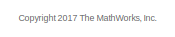
[diagram: root canvas - part 1/3, top center region]
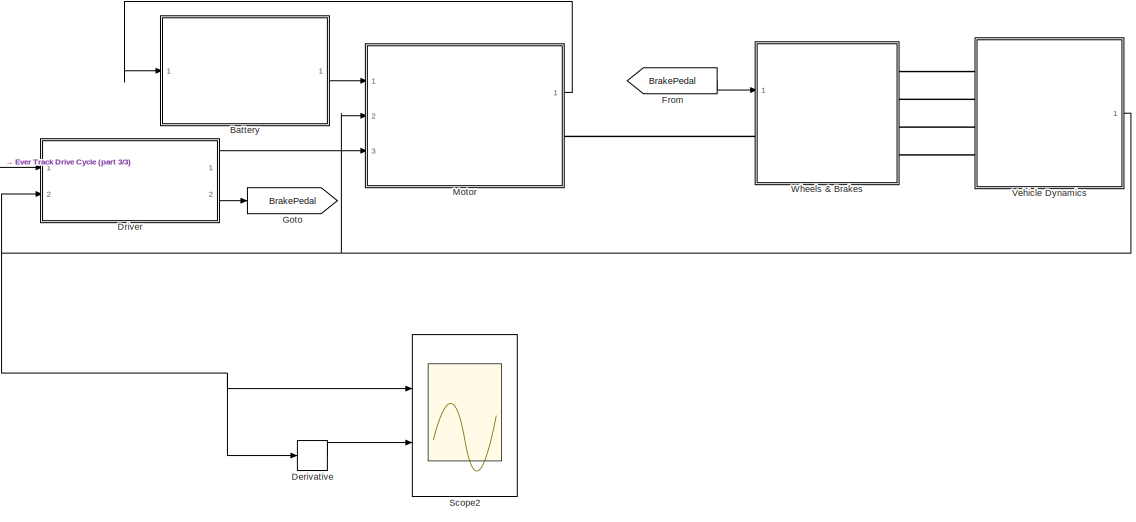
[diagram: root canvas - part 2/3, bottom center region]
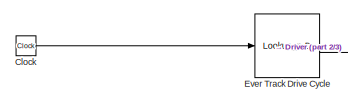
[diagram: root canvas - part 3/3, bottom left region]
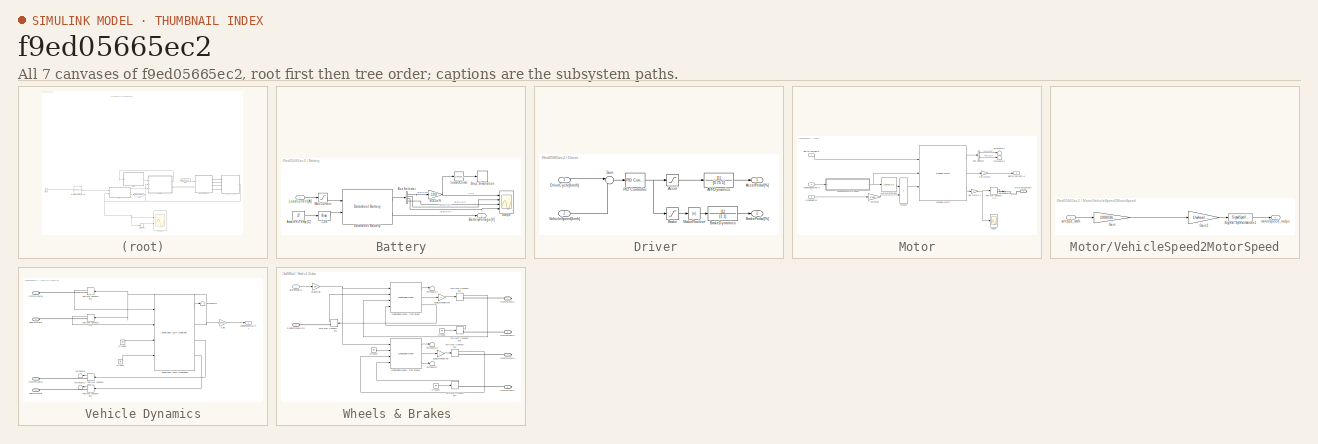
[diagram: thumbnail index - all 7 canvases of the model, root first then tree order]
MODEL slx_f9ed05665ec2
KIND model
CONFIG AbsTol = auto
CONFIG EnableMultiTasking = off
CONFIG FixedStep = .001
CONFIG MaxStep = auto
CONFIG MinStep = auto
CONFIG RelTol = 1e-5
CONFIG SampleTimeConstraint = Unconstrained
CONFIG Solver = ode23tb
CONFIG SolverName = ode23tb
CONFIG StartTime = 0.0
CONFIG StopTime = 3158
WORKSPACE source: MAT-file member
WORKSPACE Cd = 0.3
WORKSPACE DrCycles: struct (value not decoded)
BLOCK [SubSystem] Battery
  Ports = [1, 1]
  RequestExecContextInheritance = off
BLOCK [Constant] Battery/AmbientTemp[C]
  Value = 27
BLOCK [Outport] Battery/BatteryVoltage[V]
  IconDisplay = Port number
BLOCK [BusSelector] Battery/Bus Selector
  OutputAsBus = off
  OutputSignals = BattSoc,BattCurr,BattPwr,BattVolt
  Ports = [1, 4]
BLOCK [Bias] Battery/C2K
  Bias = 273
  SaturateOnIntegerOverflow = off
BLOCK [Reference] Battery/Datasheet Battery  REF=autolibdatasheetbattery/Datasheet Battery
  Ports = [2, 2]
  SourceBlock = autolibdatasheetbattery/Datasheet Battery
  SourceProductBaseCode = PW
  SourceProductName = Powertrain Blockset
  SourceType = Datasheet Battery
BLOCK [Inport] Battery/LoadCurrent[A]
  IconDisplay = Port number
BLOCK [Saturate] Battery/Max Current
  InputPortMap = u0
  LowerLimit = 0
  Ports = [1, 1]
  UpperLimit = 180
BLOCK [Gain] Battery/SOCto%
  Gain = 100
  OutDataTypeStr = Inherit: Inherit via internal rule
  ParamDataTypeStr = Inherit: Inherit via internal rule
  SaturateOnIntegerOverflow = off
BLOCK [Scope] Battery/Scope
  Floating = off
  NumInputPorts = 4
  Ports = [4]
  ScopeSpecificationString = Simulink.scopes.TimeScopeBlockCfg('CurrentConfiguration', extmgr.ConfigurationSet(extmgr.Configuration('Core','General UI',true,'FigureColor',[1 1 1]),extmgr.Configuration('Core','Source UI',true),extmgr.Configuration('Sources','WiredSimulink',true,'DataLoggingVariableName','ScopeData1'),extmgr.Configuration('Visuals','Time Domain',true,'SerializedDisplays',{struct('MinYLimReal','33.32208','MaxYLi...<+3558ch>
BLOCK [Stop] Battery/Stop Simulation
BLOCK [Reference] Battery/lowSOClimit  REF=simulink/Logic and Bit
Operations/Compare
To Constant
  Ports = [1, 1]
  SourceBlock = simulink/Logic and Bit\nOperations/Compare\nTo Constant
  SourceProductBaseCode = SL
  SourceProductName = Simulink
  SourceType = Compare To Constant
BLOCK [Clock] Clock
BLOCK [Derivative] Derivative
BLOCK [SubSystem] Driver 
  AncestorBlock = Wheels_Driver_VehDyn_Lib/Driver
  Ports = [2, 2]
  RequestExecContextInheritance = off
BLOCK [Inport] Driver / DriveCycle[km//h]
  IconDisplay = Port number
BLOCK [TransferFcn] Driver /APPDynamics
  Denominator = [0.75 1]
BLOCK [Saturate] Driver /Accel
  InputPortMap = u0
  LowerLimit = 0
  Ports = [1, 1]
  UpperLimit = 100
BLOCK [Outport] Driver /AccelPedal[%]
  IconDisplay = Port number
BLOCK [Saturate] Driver /Brake
  InputPortMap = u0
  LowerLimit = -100
  Ports = [1, 1]
  UpperLimit = 0
BLOCK [TransferFcn] Driver /BrakeDynamics
  Denominator = [1 1]
BLOCK [Outport] Driver /BrakePedal[%]
  IconDisplay = Port number
  Port = 2
BLOCK [Abs] Driver /MakePositive
  SaturateOnIntegerOverflow = off
BLOCK [Reference] Driver /PID Controller  REF=simulink/Continuous/PID Controller
  Ports = [1, 1]
  SourceBlock = simulink/Continuous/PID Controller
  SourceProductBaseCode = SL
  SourceProductName = Simulink
  SourceType = PID 1dof
BLOCK [Sum] Driver /Sum
  IconShape = round
  InputSameDT = off
  Inputs = |+-
  OutDataTypeStr = Inherit: Inherit via internal rule
  Ports = [2, 1]
  SaturateOnIntegerOverflow = off
BLOCK [Inport] Driver /VehicleSpeed[kmh]
  IconDisplay = Port number
  Port = 2
BLOCK [Lookup_n-D] Ever Track Drive Cycle
  BreakpointsForDimension1 = [-5:5]
  DataSpecification = Lookup table object
  InternalRulePriority = Speed
  LookupTableObject = Drive_Cycle
  NumberOfTableDimensions = 1
  Ports = [1, 1]
  RndMeth = Simplest
  Table = tanh([-5:5])
BLOCK [From] From
  GotoTag = BrakePedal
BLOCK [Goto] Goto
  GotoTag = BrakePedal
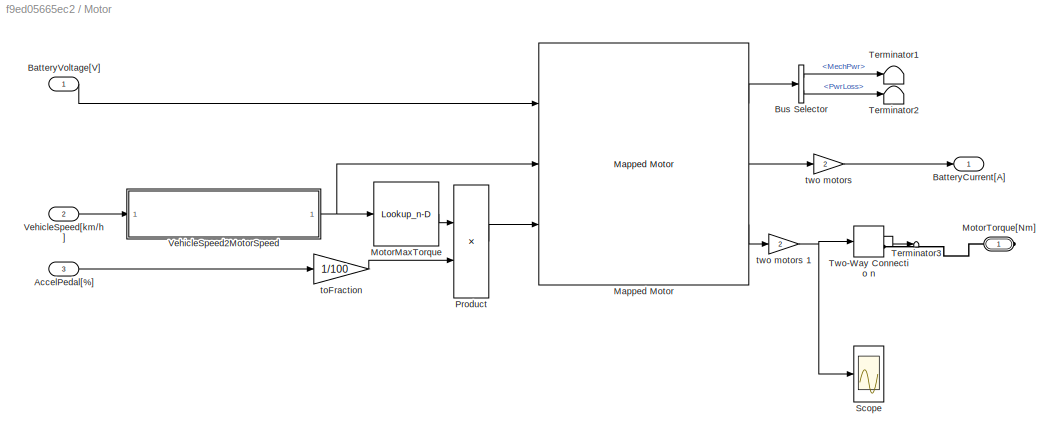
BLOCK [SubSystem] Motor
  Ports = [3, 1, 0, 0, 0, 0, 1]
  RequestExecContextInheritance = off
BLOCK [Inport] Motor/AccelPedal[%]
  IconDisplay = Port number
  Port = 3
BLOCK [Outport] Motor/BatteryCurrent[A]
  IconDisplay = Port number
BLOCK [Inport] Motor/BatteryVoltage[V]
  IconDisplay = Port number
BLOCK [BusSelector] Motor/Bus Selector
  OutputAsBus = off
  OutputSignals = MechPwr,PwrLoss
  Ports = [1, 2]
BLOCK [Reference] Motor/Mapped Motor  REF=autolibmappedmotor/Mapped Motor
  Ports = [3, 3]
  SourceBlock = autolibmappedmotor/Mapped Motor
  SourceProductBaseCode = PW
  SourceProductName = Powertrain Blockset
  SourceType = MappedMotor
BLOCK [Lookup_n-D] Motor/MotorMaxTorque
  BreakpointsForDimension1 = [4.396\n6.594\n8.478\n10.25733333\n11.932\n13.816\n15.59533333\n17.47933333\n19.25866667\n21.77066667\n23.96866667\n26.062\n28.36466667\n30.772\n33.284\n35.90066667\n38.72666667\n41.97133333\n45.63466667\n49.612\n53.17066667\n57.462\n63.21866667\n84.25666667\n85.094\n85.722\n86.24533333\n86.87333333\n87.39666667\n88.12933333\n88.65266667\n89.07133333\n89.49\n89.804\n90.01333333\n90.118\n\n]
  ExtrapMethod = Clip
  InternalRulePriority = Speed
  NumberOfTableDimensions = 1
  Ports = [1, 1]
  RndMeth = Simplest
  Table = [190.6\n184.5\n178.2\n173.4\n168.1\n162.5\n155.4\n150.1\n144.2\n137.1\n131.1\n125.4\n120.1\n114.6\n109.4\n104.0\n98.3\n93.1\n87.8\n82.2\n77.2\n71.6\n66.2\n53.4\n47.2\n41.2\n35.4\n25.0\n20.0\n15.3\n11.3\n7.8\n5.1\n2.9\n2.2\n0.9\n\n]
BLOCK [PMIOPort] Motor/MotorTorque[Nm]
  Side = Right
BLOCK [Product] Motor/Product
  InputSameDT = off
  OutDataTypeStr = Inherit: Inherit via internal rule
  Ports = [2, 1]
  RndMeth = Floor
  SaturateOnIntegerOverflow = off
BLOCK [Scope] Motor/Scope
  Floating = off
  NumInputPorts = 1
  Ports = [1]
  ScopeSpecificationString = Simulink.scopes.TimeScopeBlockCfg('CurrentConfiguration', extmgr.ConfigurationSet(extmgr.Configuration('Core','General UI',true,'FigureColor',[1 1 1]),extmgr.Configuration('Core','Source UI',true),extmgr.Configuration('Sources','WiredSimulink',true,'DataLoggingVariableName','ScopeData4'),extmgr.Configuration('Visuals','Time Domain',true,'SerializedDisplays',{struct('MinYLimReal','-37.07826','MaxYL...<+1436ch>
BLOCK [Terminator] Motor/Terminator1
BLOCK [Terminator] Motor/Terminator2
BLOCK [Terminator] Motor/Terminator3
BLOCK [TwoWayConnection] Motor/Two-Way Connectio n
  Ports = [1, 1, 0, 0, 0, 0, 1]
BLOCK [SubSystem] Motor/VehicleSpeed2MotorSpeed
  Ports = [1, 1]
  RequestExecContextInheritance = off
BLOCK [Gain] Motor/VehicleSpeed2MotorSpeed/Gain
  Gain = 1000/3600
  OutDataTypeStr = Inherit: Inherit via internal rule
  ParamDataTypeStr = Inherit: Inherit via internal rule
  SaturateOnIntegerOverflow = off
BLOCK [Gain] Motor/VehicleSpeed2MotorSpeed/Gain2
  Gain = 1/wheelRadius
  OutDataTypeStr = Inherit: Inherit via internal rule
  ParamDataTypeStr = Inherit: Inherit via internal rule
  SaturateOnIntegerOverflow = off
BLOCK [SignalSpecification] Motor/VehicleSpeed2MotorSpeed/Signal Specification1
  Unit = rad/s
BLOCK [Outport] Motor/VehicleSpeed2MotorSpeed/motorSpeed_radps
  IconDisplay = Port number
BLOCK [Inport] Motor/VehicleSpeed2MotorSpeed/vehSpd_km//h
  IconDisplay = Port number
BLOCK [Inport] Motor/VehicleSpeed[km//h]
  IconDisplay = Port number
  Port = 2
BLOCK [Gain] Motor/toFraction
  Gain = 1/100
  OutDataTypeStr = Inherit: Inherit via internal rule
  ParamDataTypeStr = Inherit: Inherit via internal rule
  SaturateOnIntegerOverflow = off
BLOCK [Gain] Motor/two motors 
  Gain = 2
  OutDataTypeStr = Inherit: Inherit via internal rule
  ParamDataTypeStr = Inherit: Inherit via internal rule
  SaturateOnIntegerOverflow = off
BLOCK [Gain] Motor/two motors 1
  Gain = 2
  OutDataTypeStr = Inherit: Inherit via internal rule
  ParamDataTypeStr = Inherit: Inherit via internal rule
  SaturateOnIntegerOverflow = off
BLOCK [Scope] Scope2
  Floating = off
  NumInputPorts = 2
  Ports = [2]
  ScopeSpecificationString = Simulink.scopes.TimeScopeBlockCfg('CurrentConfiguration', extmgr.ConfigurationSet(extmgr.Configuration('Core','General UI',true,'FigureColor',[1 1 1]),extmgr.Configuration('Core','Source UI',true),extmgr.Configuration('Sources','WiredSimulink',true,'DataLoggingVariableName','ScopeData2'),extmgr.Configuration('Visuals','Time Domain',true,'TimeAxisLabels','All','SerializedDisplays',{struct('MinYLimR...<+2368ch>
BLOCK [SubSystem] Vehicle Dynamics
  AncestorBlock = Wheels_Driver_VehDyn_Lib/Vehicle Dynamics
  Ports = [0, 1, 0, 0, 0, 4]
  RequestExecContextInheritance = off
BLOCK [PMIOPort] Vehicle Dynamics/FrontForceX[N]
  Side = Left
BLOCK [PMIOPort] Vehicle Dynamics/FrontForceZ[N]
  Port = 2
  Side = Left
BLOCK [Gain] Vehicle Dynamics/Gain
  Gain = 3600/1000
  OutDataTypeStr = Inherit: Inherit via internal rule
  ParamDataTypeStr = Inherit: Inherit via internal rule
  SaturateOnIntegerOverflow = off
BLOCK [Ground] Vehicle Dynamics/Ground
BLOCK [Ground] Vehicle Dynamics/Ground1
BLOCK [PMIOPort] Vehicle Dynamics/RearForceX[N]
  Port = 3
  Side = Left
BLOCK [PMIOPort] Vehicle Dynamics/RearForceZ[N]
  Port = 4
  Side = Left
BLOCK [Terminator] Vehicle Dynamics/Terminator
BLOCK [Terminator] Vehicle Dynamics/Terminator1
BLOCK [Terminator] Vehicle Dynamics/Terminator2
BLOCK [TwoWayConnection] Vehicle Dynamics/Two-Way Connection1
  Ports = [1, 1, 0, 0, 0, 0, 1]
BLOCK [TwoWayConnection] Vehicle Dynamics/Two-Way Connection2
  Ports = [1, 1, 0, 0, 0, 0, 1]
BLOCK [TwoWayConnection] Vehicle Dynamics/Two-Way Connection3
  Ports = [1, 1, 0, 0, 0, 0, 1]
BLOCK [TwoWayConnection] Vehicle Dynamics/Two-Way Connection4
  Ports = [1, 1, 0, 0, 0, 0, 1]
BLOCK [Reference] Vehicle Dynamics/Vehicle Body 1DOF Longitudinal  REF=autolibshared/Vehicle Body 1DOF Longitudinal
  Ports = [4, 4]
  SourceBlock = autolibshared/Vehicle Body 1DOF Longitudinal
  SourceProductBaseCode = PW
  SourceProductName = Powertrain Blockset
  SourceType = Vehicle Body 1DOF Longitudinal
BLOCK [Outport] Vehicle Dynamics/VehicleSpeed[km//h]
  IconDisplay = Port number
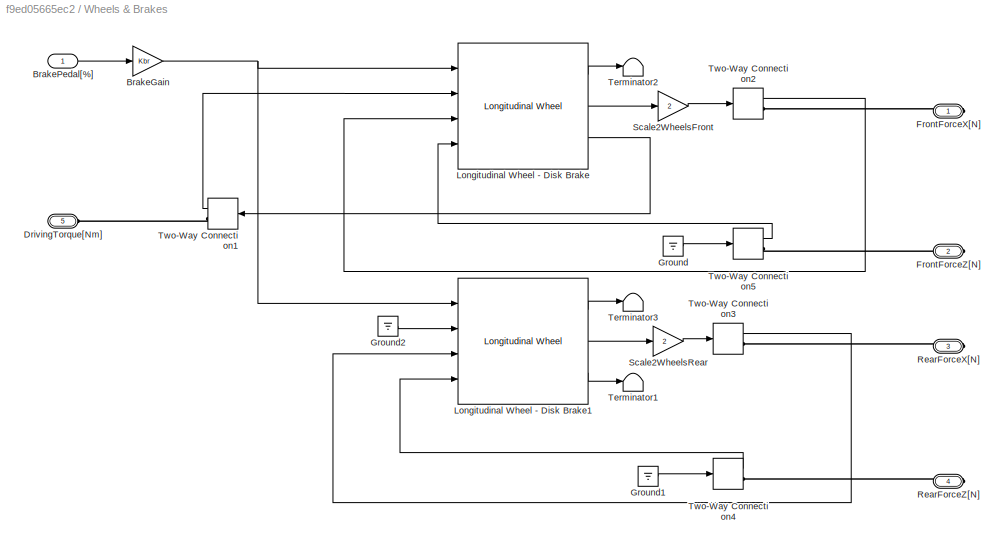
BLOCK [SubSystem] Wheels & Brakes 
  AncestorBlock = Wheels_Driver_VehDyn_Lib/Wheels & Brakes
  Ports = [1, 0, 0, 0, 0, 1, 4]
  RequestExecContextInheritance = off
BLOCK [Gain] Wheels & Brakes /BrakeGain
  Gain = Kbr
  OutDataTypeStr = Inherit: Inherit via internal rule
  ParamDataTypeStr = Inherit: Inherit via internal rule
  SaturateOnIntegerOverflow = off
BLOCK [Inport] Wheels & Brakes /BrakePedal[%]
  IconDisplay = Port number
BLOCK [PMIOPort] Wheels & Brakes /DrivingTorque[Nm]
  Port = 5
  Side = Left
BLOCK [PMIOPort] Wheels & Brakes /FrontForceX[N]
  Side = Right
BLOCK [PMIOPort] Wheels & Brakes /FrontForceZ[N]
  Port = 2
  Side = Right
BLOCK [Ground] Wheels & Brakes /Ground
BLOCK [Ground] Wheels & Brakes /Ground1
BLOCK [Ground] Wheels & Brakes /Ground2
BLOCK [Reference] Wheels & Brakes /Longitudinal Wheel - Disk Brake  REF=autolibshared/Longitudinal Wheel
  AttributesFormatString = Fx Type: %<FxType>\nRolling Type: %<rollingType>
  Ports = [4, 3]
  SourceBlock = autolibshared/Longitudinal Wheel
  SourceProductBaseCode = PW
  SourceProductName = Powertrain Blockset
  SourceType = Longitudinal Wheel
BLOCK [Reference] Wheels & Brakes /Longitudinal Wheel - Disk Brake1  REF=autolibshared/Longitudinal Wheel
  AttributesFormatString = Fx Type: %<FxType>\nRolling Type: %<rollingType>
  Ports = [4, 3]
  SourceBlock = autolibshared/Longitudinal Wheel
  SourceProductBaseCode = PW
  SourceProductName = Powertrain Blockset
  SourceType = Longitudinal Wheel
BLOCK [PMIOPort] Wheels & Brakes /RearForceX[N]
  Port = 3
  Side = Right
BLOCK [PMIOPort] Wheels & Brakes /RearForceZ[N]
  Port = 4
  Side = Right
BLOCK [Gain] Wheels & Brakes /Scale2WheelsFront
  Gain = 2
  OutDataTypeStr = Inherit: Inherit via internal rule
  ParamDataTypeStr = Inherit: Inherit via internal rule
  SaturateOnIntegerOverflow = off
BLOCK [Gain] Wheels & Brakes /Scale2WheelsRear
  Gain = 2
  OutDataTypeStr = Inherit: Inherit via internal rule
  ParamDataTypeStr = Inherit: Inherit via internal rule
  SaturateOnIntegerOverflow = off
BLOCK [Terminator] Wheels & Brakes /Terminator1
BLOCK [Terminator] Wheels & Brakes /Terminator2
BLOCK [Terminator] Wheels & Brakes /Terminator3
BLOCK [TwoWayConnection] Wheels & Brakes /Two-Way Connection1
  Ports = [1, 1, 0, 0, 0, 0, 1]
BLOCK [TwoWayConnection] Wheels & Brakes /Two-Way Connection2
  Ports = [1, 1, 0, 0, 0, 0, 1]
BLOCK [TwoWayConnection] Wheels & Brakes /Two-Way Connection3
  Ports = [1, 1, 0, 0, 0, 0, 1]
BLOCK [TwoWayConnection] Wheels & Brakes /Two-Way Connection4
  Ports = [1, 1, 0, 0, 0, 0, 1]
BLOCK [TwoWayConnection] Wheels & Brakes /Two-Way Connection5
  Ports = [1, 1, 0, 0, 0, 0, 1]
ANNOTATION (root): <copyright redacted>
LINE Battery/AmbientTemp[C]:1 -> Battery/C2K:1
LINE Battery/Bus Selector:1 -> Battery/SOCto%:1
LINE Battery/Bus Selector:2 -> Battery/Scope:2
LINE Battery/Bus Selector:3 -> Battery/Scope:4
LINE Battery/Bus Selector:4 -> Battery/Scope:3
LINE Battery/C2K:1 -> Battery/Datasheet Battery:2
LINE Battery/Datasheet Battery:1 -> Battery/Bus Selector:1
LINE Battery/Datasheet Battery:2 -> Battery/BatteryVoltage[V]:1
LINE Battery/LoadCurrent[A]:1 -> Battery/Max Current:1
LINE Battery/Max Current:1 -> Battery/Datasheet Battery:1
NET Battery/SOCto%:1 -> Battery/Scope:1, Battery/lowSOClimit:1
LINE Battery/lowSOClimit:1 -> Battery/Stop Simulation:1
LINE Battery:1 -> Motor:1
LINE Clock:1 -> Ever Track Drive Cycle:1
LINE Derivative:1 -> Scope2:2
LINE Driver :1 -> Motor:3
LINE Driver :2 -> Goto:1
LINE Ever Track Drive Cycle:1 -> Driver :1
LINE From:1 -> Wheels & Brakes :1
LINE Motor/AccelPedal[%]:1 -> Motor/toFraction:1
LINE Motor/BatteryVoltage[V]:1 -> Motor/Mapped Motor:1
LINE Motor/Bus Selector:1 -> Motor/Terminator1:1
LINE Motor/Bus Selector:2 -> Motor/Terminator2:1
LINE Motor/Mapped Motor:1 -> Motor/Bus Selector:1
LINE Motor/Mapped Motor:2 -> Motor/two motors :1
LINE Motor/Mapped Motor:3 -> Motor/two motors 1:1
LINE Motor/MotorMaxTorque:1 -> Motor/Product:1
LINE Motor/Product:1 -> Motor/Mapped Motor:3
LINE Motor/Two-Way Connectio n:1 -> Motor/Terminator3:1
LINE Motor/VehicleSpeed2MotorSpeed/Gain2:1 -> Motor/VehicleSpeed2MotorSpeed/Signal Specification1:1
LINE Motor/VehicleSpeed2MotorSpeed/Gain:1 -> Motor/VehicleSpeed2MotorSpeed/Gain2:1
LINE Motor/VehicleSpeed2MotorSpeed/Signal Specification1:1 -> Motor/VehicleSpeed2MotorSpeed/motorSpeed_radps:1
LINE Motor/VehicleSpeed2MotorSpeed/vehSpd_km//h:1 -> Motor/VehicleSpeed2MotorSpeed/Gain:1
NET Motor/VehicleSpeed2MotorSpeed:1 -> Motor/Mapped Motor:2, Motor/MotorMaxTorque:1
LINE Motor/VehicleSpeed[km//h]:1 -> Motor/VehicleSpeed2MotorSpeed:1
LINE Motor/toFraction:1 -> Motor/Product:2
NET Motor/two motors 1:1 -> Motor/Scope:1, Motor/Two-Way Connectio n:1
LINE Motor/two motors :1 -> Motor/BatteryCurrent[A]:1
LINE Motor:1 -> Battery:1
NET Vehicle Dynamics:1 -> Derivative:1, Driver :2, Motor:2, Scope2:1
PLINE Motor/MotorTorque[Nm]:RConn1 -- Motor/Two-Way Connectio n:RConn1
PLINE Motor:RConn1 -- Wheels & Brakes :LConn1
PLINE Vehicle Dynamics:LConn1 -- Wheels & Brakes :RConn1
PLINE Vehicle Dynamics:LConn2 -- Wheels & Brakes :RConn2
PLINE Vehicle Dynamics:LConn3 -- Wheels & Brakes :RConn3
PLINE Vehicle Dynamics:LConn4 -- Wheels & Brakes :RConn4
note: NET lines group one-source signal fan-out (src -> all destinations, sorted); 1:1 wires keep LINE
